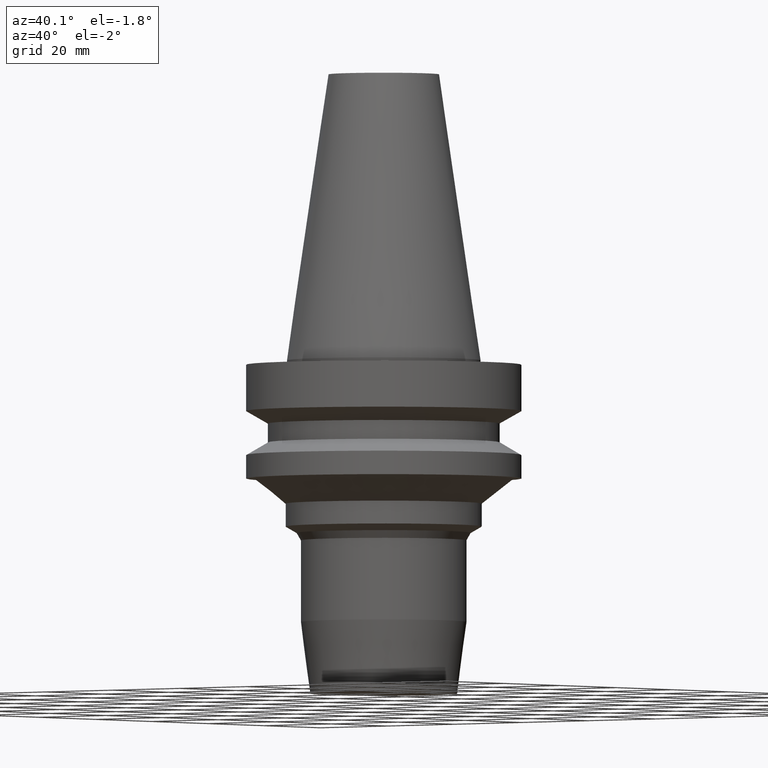
[diagram: clean part render]
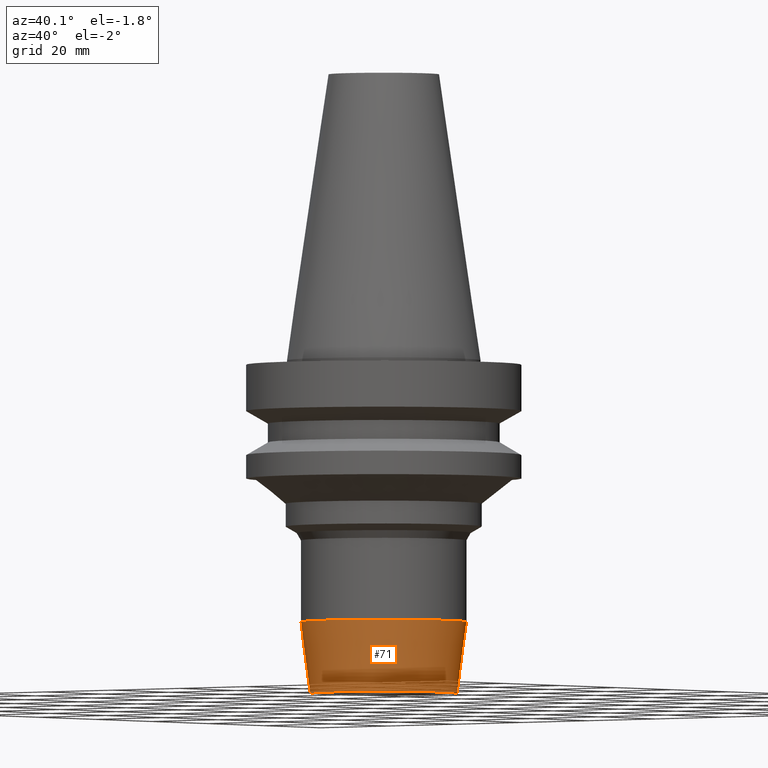
[diagram: same view with one face highlighted and labeled with its STEP entity id]
A machine part, auxiliary view. The second image highlights one B-rep face of the part: STEP entity #71.
In plain terms, the highlighted conical surface has half-angle 7.5 deg.
Its self-contained STEP definition (entity closure, byte-faithful):
#71=ADVANCED_FACE('Unnamed[1]',(#181,#182),#183,.T.);
#83=EDGE_CURVE('Unnamed[1]',#200,#200,#201,.T.);
#115=EDGE_CURVE('Unnamed[1]',#250,#250,#251,.T.);
#181=FACE_BOUND('',#326,.T.);
#182=FACE_BOUND('',#327,.T.);
#183=CONICAL_SURFACE('',#328,17.9227653025982,0.13089969389958);
#200=VERTEX_POINT('',#351);
#201=CIRCLE('',#352,16.8455306051985);
#250=VERTEX_POINT('',#413);
#251=CIRCLE('',#414,18.9999999999979);
#326=EDGE_LOOP('',(#492));
#327=EDGE_LOOP('',(#493));
#328=AXIS2_PLACEMENT_3D('',#494,#495,#496);
#351=CARTESIAN_POINT('',(4.66590430475147E-015,16.8455306051985,-76.2000000000008));
#352=AXIS2_PLACEMENT_3D('',#512,#513,#514);
#413=CARTESIAN_POINT('',(3.66384809748111E-015,18.9999999999979,-59.8351802337135));
#414=AXIS2_PLACEMENT_3D('',#570,#571,#572);
#492=ORIENTED_EDGE('',*,*,#83,.F.);
#493=ORIENTED_EDGE('',*,*,#115,.T.);
#494=CARTESIAN_POINT('',(4.16487620111629E-015,-1.29482113096688E-014,-68.0175901168572));
#495=DIRECTION('',(-6.12323399573677E-017,6.70422349373967E-016,1.0));
#496=DIRECTION('',(3.62243764811148E-032,1.0,-6.70422349373967E-016));
#512=CARTESIAN_POINT('',(4.66590430475147E-015,-1.84338817670668E-014,-76.2000000000008));
#513=DIRECTION('',(6.12323399573677E-017,-6.70422349373967E-016,-1.0));
#514=DIRECTION('',(3.62243764811148E-032,1.0,-6.70422349373967E-016));
#570=CARTESIAN_POINT('',(3.66384809748111E-015,-7.4625408522709E-015,-59.8351802337135));
#571=DIRECTION('',(6.12323399573676E-017,-6.70422349373967E-016,-1.0));
#572=DIRECTION('',(3.62243764811148E-032,1.0,-6.70422349373967E-016));